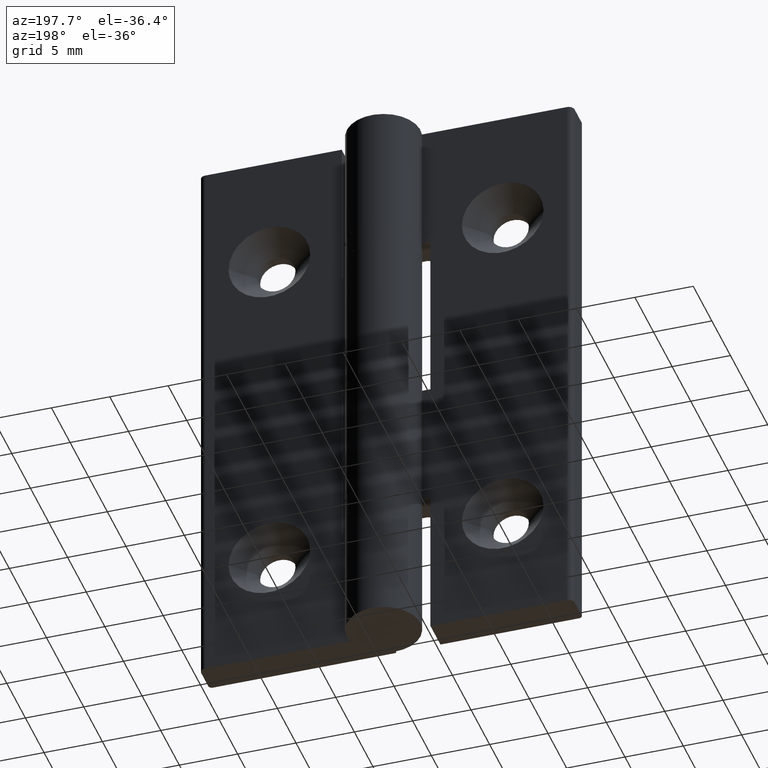
[diagram: clean part render]
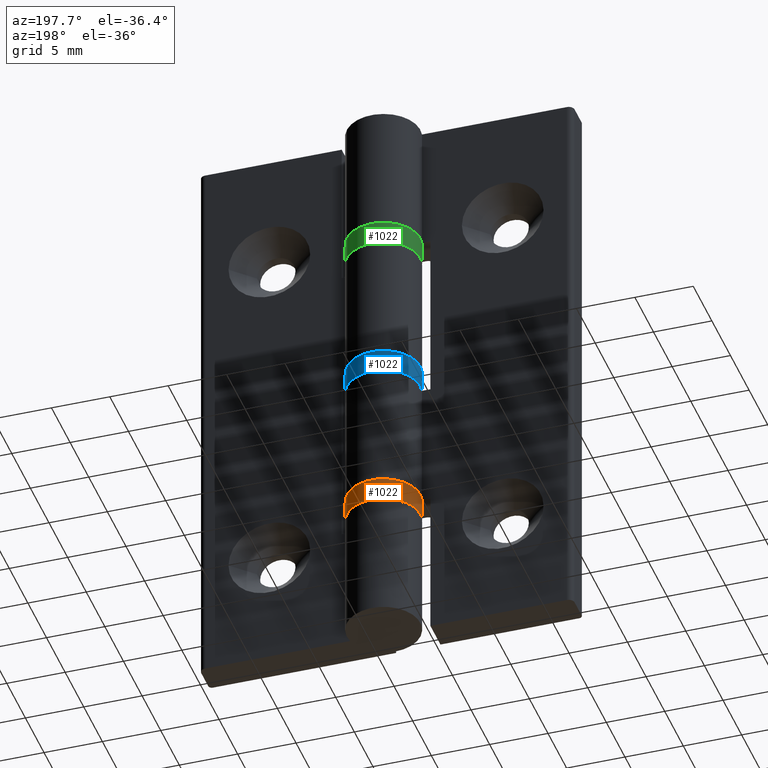
[diagram: same view with three faces highlighted in distinct colors, each labeled with its STEP entity id]
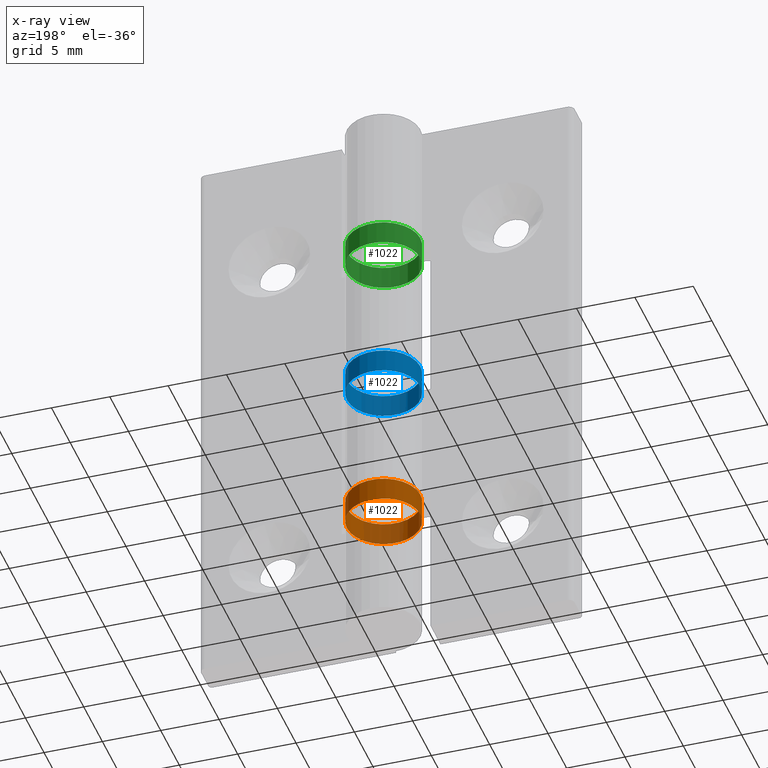
[diagram: x-ray of the same camera — body ghosted, the three highlighted faces saturated]
A machine part, auxiliary view with three faces highlighted in distinct colors.
The next image is the same camera in x-ray (body ghosted, the three faces saturated) — at least one of them is partly hidden behind the body in this view.
Their STEP definitions:

[orange] entity #1022 — the highlighted cylindrical surface (bore or boss wall) has radius 3.15 mm, axis along (0, 0, 1).
#79=CYLINDRICAL_SURFACE('',#1139,3.15);
#110=FACE_BOUND('',#309,.T.);
#165=CIRCLE('',#1140,3.15);
#166=CIRCLE('',#1141,3.15);
#221=FACE_OUTER_BOUND('',#308,.T.);
#308=EDGE_LOOP('',(#934));
#309=EDGE_LOOP('',(#935));
#554=VERTEX_POINT('',#1746);
#555=VERTEX_POINT('',#1748);
#682=EDGE_CURVE('',#554,#554,#165,.T.);
#683=EDGE_CURVE('',#555,#555,#166,.T.);
#934=ORIENTED_EDGE('',*,*,#682,.F.);
#935=ORIENTED_EDGE('',*,*,#683,.F.);
#1022=ADVANCED_FACE('',(#221,#110),#79,.T.);
#1139=AXIS2_PLACEMENT_3D('',#1745,#1445,#1446);
#1140=AXIS2_PLACEMENT_3D('',#1747,#1447,#1448);
#1141=AXIS2_PLACEMENT_3D('',#1749,#1449,#1450);
#1445=DIRECTION('center_axis',(0.,0.,1.));
#1446=DIRECTION('ref_axis',(-1.,0.,0.));
#1447=DIRECTION('center_axis',(0.,0.,1.));
#1448=DIRECTION('ref_axis',(-1.,0.,0.));
#1449=DIRECTION('center_axis',(0.,0.,-1.));
#1450=DIRECTION('ref_axis',(-1.,0.,0.));
#1745=CARTESIAN_POINT('Origin',(-6.40586858430989,0.650000000000001,0.));
#1746=CARTESIAN_POINT('',(-3.25586858430989,0.650000000000002,2.));
#1747=CARTESIAN_POINT('Origin',(-6.40586858430989,0.650000000000001,2.));
#1748=CARTESIAN_POINT('',(-3.25586858430989,0.650000000000002,0.));
#1749=CARTESIAN_POINT('Origin',(-6.40586858430989,0.650000000000001,0.));

[blue] entity #1022 — the highlighted cylindrical surface (bore or boss wall) has radius 3.15 mm, axis along (0, 0, 1).
#79=CYLINDRICAL_SURFACE('',#1139,3.15);
#110=FACE_BOUND('',#309,.T.);
#165=CIRCLE('',#1140,3.15);
#166=CIRCLE('',#1141,3.15);
#221=FACE_OUTER_BOUND('',#308,.T.);
#308=EDGE_LOOP('',(#934));
#309=EDGE_LOOP('',(#935));
#554=VERTEX_POINT('',#1746);
#555=VERTEX_POINT('',#1748);
#682=EDGE_CURVE('',#554,#554,#165,.T.);
#683=EDGE_CURVE('',#555,#555,#166,.T.);
#934=ORIENTED_EDGE('',*,*,#682,.F.);
#935=ORIENTED_EDGE('',*,*,#683,.F.);
#1022=ADVANCED_FACE('',(#221,#110),#79,.T.);
#1139=AXIS2_PLACEMENT_3D('',#1745,#1445,#1446);
#1140=AXIS2_PLACEMENT_3D('',#1747,#1447,#1448);
#1141=AXIS2_PLACEMENT_3D('',#1749,#1449,#1450);
#1445=DIRECTION('center_axis',(0.,0.,1.));
#1446=DIRECTION('ref_axis',(-1.,0.,0.));
#1447=DIRECTION('center_axis',(0.,0.,1.));
#1448=DIRECTION('ref_axis',(-1.,0.,0.));
#1449=DIRECTION('center_axis',(0.,0.,-1.));
#1450=DIRECTION('ref_axis',(-1.,0.,0.));
#1745=CARTESIAN_POINT('Origin',(-6.40586858430989,0.650000000000001,0.));
#1746=CARTESIAN_POINT('',(-3.25586858430989,0.650000000000002,2.));
#1747=CARTESIAN_POINT('Origin',(-6.40586858430989,0.650000000000001,2.));
#1748=CARTESIAN_POINT('',(-3.25586858430989,0.650000000000002,0.));
#1749=CARTESIAN_POINT('Origin',(-6.40586858430989,0.650000000000001,0.));

[green] entity #1022 — the highlighted cylindrical surface (bore or boss wall) has radius 3.15 mm, axis along (0, 0, 1).
#79=CYLINDRICAL_SURFACE('',#1139,3.15);
#110=FACE_BOUND('',#309,.T.);
#165=CIRCLE('',#1140,3.15);
#166=CIRCLE('',#1141,3.15);
#221=FACE_OUTER_BOUND('',#308,.T.);
#308=EDGE_LOOP('',(#934));
#309=EDGE_LOOP('',(#935));
#554=VERTEX_POINT('',#1746);
#555=VERTEX_POINT('',#1748);
#682=EDGE_CURVE('',#554,#554,#165,.T.);
#683=EDGE_CURVE('',#555,#555,#166,.T.);
#934=ORIENTED_EDGE('',*,*,#682,.F.);
#935=ORIENTED_EDGE('',*,*,#683,.F.);
#1022=ADVANCED_FACE('',(#221,#110),#79,.T.);
#1139=AXIS2_PLACEMENT_3D('',#1745,#1445,#1446);
#1140=AXIS2_PLACEMENT_3D('',#1747,#1447,#1448);
#1141=AXIS2_PLACEMENT_3D('',#1749,#1449,#1450);
#1445=DIRECTION('center_axis',(0.,0.,1.));
#1446=DIRECTION('ref_axis',(-1.,0.,0.));
#1447=DIRECTION('center_axis',(0.,0.,1.));
#1448=DIRECTION('ref_axis',(-1.,0.,0.));
#1449=DIRECTION('center_axis',(0.,0.,-1.));
#1450=DIRECTION('ref_axis',(-1.,0.,0.));
#1745=CARTESIAN_POINT('Origin',(-6.40586858430989,0.650000000000001,0.));
#1746=CARTESIAN_POINT('',(-3.25586858430989,0.650000000000002,2.));
#1747=CARTESIAN_POINT('Origin',(-6.40586858430989,0.650000000000001,2.));
#1748=CARTESIAN_POINT('',(-3.25586858430989,0.650000000000002,0.));
#1749=CARTESIAN_POINT('Origin',(-6.40586858430989,0.650000000000001,0.));